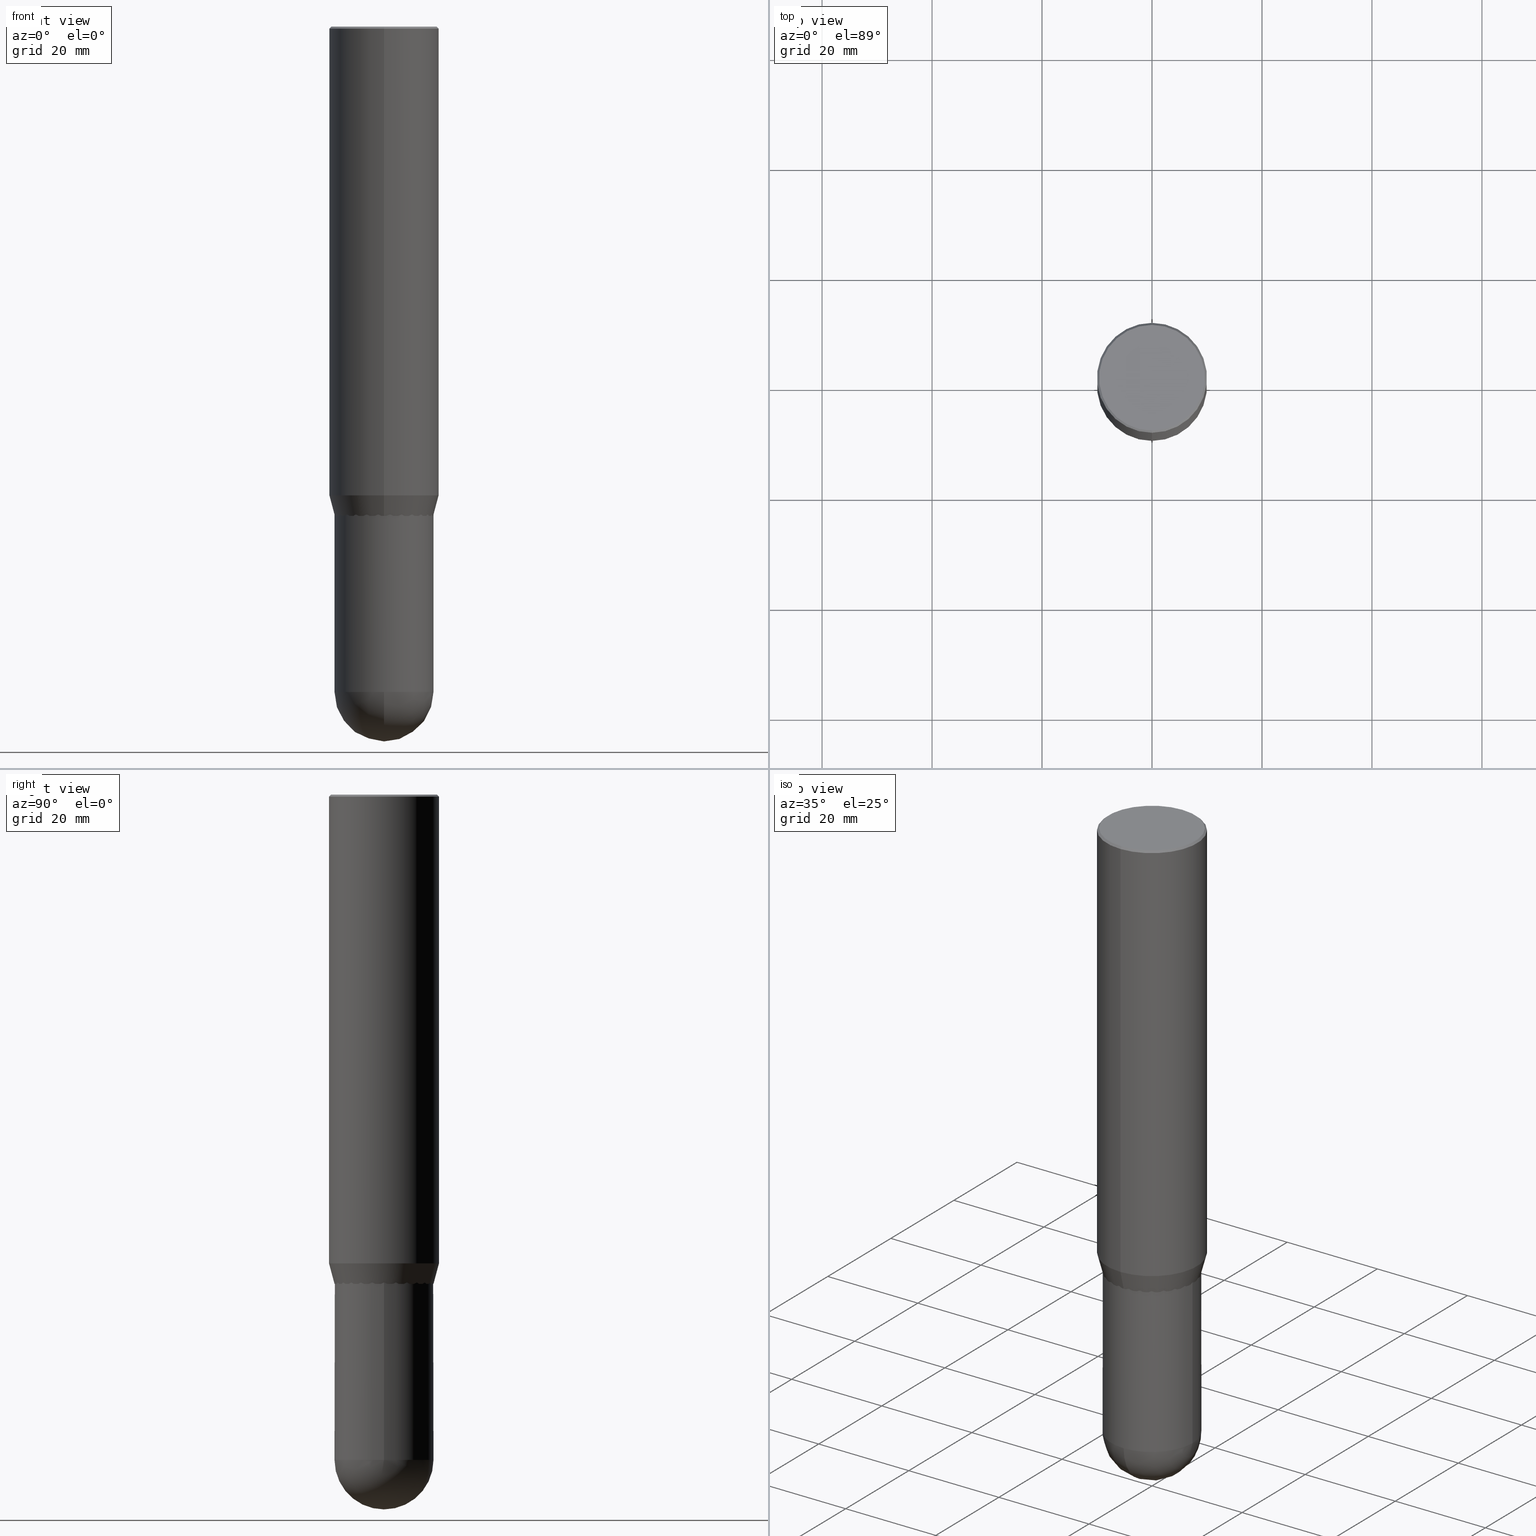
[diagram: canonical four-view strip — front | top / right | iso, engineering-drawing reading convention]
A machine part, canonical four-view strip (front | top / right | iso — engineering-drawing reading convention). The complete STEP part file that produces these views, byte-faithful:
ISO-10303-21;
HEADER;
FILE_DESCRIPTION (( 'STEP AP203' ),
    '1' );
FILE_NAME ('49650.STEP',
    '2024-03-08T13:40:11',
    ( '' ),
    ( '' ),
    'SwSTEP 2.0',
    'SolidWorks 2023',
    '' );
FILE_SCHEMA (( 'CONFIG_CONTROL_DESIGN' ));
ENDSEC;

DATA;
#1 = LOCAL_TIME ( 8, 40, 11.00000000000000000, #357 ) ;
#2 = DIRECTION ( 'NONE',  ( -2.445468806185136597E-29, 3.491481338843145583E-15, 1.000000000000000000 ) ) ;
#3 = CARTESIAN_POINT ( 'NONE',  ( -2.474412824838044286E-15, -0.3543500000000124883, -3.503099999999998992 ) ) ;
#4 = EDGE_CURVE ( 'NONE', #173, #454, #297, .T. ) ;
#5 = CIRCLE ( 'NONE', #271, 0.3937000000000000499 ) ;
#6 = CARTESIAN_POINT ( 'NONE',  ( 1.164960202546444527E-28, -1.663254422791403592E-14, -4.763749999999999929 ) ) ;
#7 = ADVANCED_BREP_SHAPE_REPRESENTATION ( '49650', ( #111, #443, #293 ), #337 ) ;
#8 = CARTESIAN_POINT ( 'NONE',  ( -0.3543500000000000538, 2.517808184165915391E-15, -1.743024649231826346E-29 ) ) ;
#9 = LOCAL_TIME ( 8, 40, 11.00000000000000000, #41 ) ;
#10 = DIRECTION ( 'NONE',  ( -2.446619523069192094E-29, 3.489833446770440452E-15, 1.000000000000000000 ) ) ;
#11 = AXIS2_PLACEMENT_3D ( 'NONE', #84, #10, #56 ) ;
#12 = VERTEX_POINT ( 'NONE', #26 ) ;
#13 = DIRECTION ( 'NONE',  ( -2.446619523069191814E-29, 3.489833446770440452E-15, 1.000000000000000000 ) ) ;
#14 = ADVANCED_FACE ( 'NONE', ( #294 ), #472, .T. ) ;
#15 = ORIENTED_EDGE ( 'NONE', *, *, #120, .F. ) ;
#16 = CARTESIAN_POINT ( 'NONE',  ( 8.570752851263687408E-29, -1.222523554738153069E-14, -3.503100000000000325 ) ) ;
#17 =( CONVERSION_BASED_UNIT ( 'INCH', #68 ) LENGTH_UNIT ( ) NAMED_UNIT ( #448 ) );
#18 = CYLINDRICAL_SURFACE ( 'NONE', #230, 0.3543500000000002759 ) ;
#19 = CC_DESIGN_PERSON_AND_ORGANIZATION_ASSIGNMENT ( #512, #39, ( #237 ) ) ;
#20 = VERTEX_POINT ( 'NONE', #460 ) ;
#21 = DIRECTION ( 'NONE',  ( 2.446619523069192094E-29, -3.489833446770440452E-15, -1.000000000000000000 ) ) ;
#22 = APPROVAL_PERSON_ORGANIZATION ( #351, #278, #150 ) ;
#23 = ORIENTED_EDGE ( 'NONE', *, *, #220, .F. ) ;
#24 = ADVANCED_FACE ( 'NONE', ( #412 ), #332, .F. ) ;
#25 = AXIS2_PLACEMENT_3D ( 'NONE', #449, #506, #338 ) ;
#26 = CARTESIAN_POINT ( 'NONE',  ( -0.3543500000000000538, -1.164041050594345640E-14, -4.763749999999999929 ) ) ;
#27 = CARTESIAN_POINT ( 'NONE',  ( 2.797406750687513998E-15, 0.3937000000000000499, -1.373947427993522467E-15 ) ) ;
#28 = PERSON_AND_ORGANIZATION ( #361, #115 ) ;
#29 = CARTESIAN_POINT ( 'NONE',  ( -2.700978061722651252E-15, -0.3937000000000001054, -0.01499999999999866371 ) ) ;
#30 = EDGE_LOOP ( 'NONE', ( #242, #299, #71, #395 ) ) ;
#31 =( LENGTH_UNIT ( ) NAMED_UNIT ( * ) SI_UNIT ( $, .METRE. ) );
#32 = PRODUCT_RELATED_PRODUCT_CATEGORY ( 'detail', '', ( #511 ) ) ;
#33 = CIRCLE ( 'NONE', #318, 0.3543500000000002759 ) ;
#34 = PERSON_AND_ORGANIZATION ( #361, #115 ) ;
#35 = CARTESIAN_POINT ( 'NONE',  ( 1.165296710481236520E-28, -1.662772524275939144E-14, -4.763749999999999929 ) ) ;
#36 = DIRECTION ( 'NONE',  ( -2.446619523069192094E-29, 3.489833446770440452E-15, 1.000000000000000000 ) ) ;
#37 = VERTEX_POINT ( 'NONE', #422 ) ;
#38 = APPROVAL_STATUS ( 'not_yet_approved' ) ;
#39 = PERSON_AND_ORGANIZATION_ROLE ( 'design_supplier' ) ;
#40 = CONICAL_SURFACE ( 'NONE', #381, 0.3937000000000000499, 0.7853981633974452814 ) ;
#41 = COORDINATED_UNIVERSAL_TIME_OFFSET ( 5, 0, .BEHIND. ) ;
#42 = EDGE_CURVE ( 'NONE', #20, #37, #311, .T. ) ;
#43 = LINE ( 'NONE', #3, #73 ) ;
#44 = ORIENTED_EDGE ( 'NONE', *, *, #231, .F. ) ;
#45 = EDGE_CURVE ( 'NONE', #454, #69, #415, .T. ) ;
#46 = ORIENTED_EDGE ( 'NONE', *, *, #175, .T. ) ;
#47 = AXIS2_PLACEMENT_3D ( 'NONE', #462, #103, #66 ) ;
#48 = DIRECTION ( 'NONE',  ( -2.446619523069192094E-29, 3.489833446770440452E-15, 1.000000000000000000 ) ) ;
#49 = AXIS2_PLACEMENT_3D ( 'NONE', #486, #444, #243 ) ;
#50 = ADVANCED_FACE ( 'NONE', ( #262 ), #181, .T. ) ;
#51 = DIRECTION ( 'NONE',  ( -2.446619523069192094E-29, 3.489833446770440452E-15, 1.000000000000000000 ) ) ;
#52 = CYLINDRICAL_SURFACE ( 'NONE', #126, 0.3543500000000000538 ) ;
#53 = CARTESIAN_POINT ( 'NONE',  ( 8.211451607026808771E-29, -1.171273187127617517E-14, -3.356243800722170434 ) ) ;
#54 = AXIS2_PLACEMENT_3D ( 'NONE', #457, #100, #253 ) ;
#55 = ORIENTED_EDGE ( 'NONE', *, *, #167, .F. ) ;
#56 = DIRECTION ( 'NONE',  ( -6.982962677686265133E-15, -1.000000000000000000, 3.491137977679279424E-15 ) ) ;
#57 = ORIENTED_EDGE ( 'NONE', *, *, #377, .T. ) ;
#58 = CARTESIAN_POINT ( 'NONE',  ( -2.517808184165798640E-15, -0.3543500000000166517, -4.763749999999999041 ) ) ;
#59 = EDGE_CURVE ( 'NONE', #265, #473, #503, .T. ) ;
#60 = ORIENTED_EDGE ( 'NONE', *, *, #101, .F. ) ;
#61 = DIRECTION ( 'NONE',  ( 1.000000000000000000, -6.982962677686266711E-15, 4.876176775795936353E-29 ) ) ;
#62 = SPHERICAL_SURFACE ( 'NONE', #213, 0.3543499999999999983 ) ;
#63 = AXIS2_PLACEMENT_3D ( 'NONE', #177, #215, #386 ) ;
#64 = ORIENTED_EDGE ( 'NONE', *, *, #387, .T. ) ;
#65 = DATE_TIME_ROLE ( 'creation_date' ) ;
#66 = DIRECTION ( 'NONE',  ( -6.982962677686266711E-15, -1.000000000000000000, 3.489833446770440452E-15 ) ) ;
#67 = ORIENTED_EDGE ( 'NONE', *, *, #220, .T. ) ;
#68 = LENGTH_MEASURE_WITH_UNIT ( LENGTH_MEASURE( 0.02539999999999999897 ), #31 );
#69 = VERTEX_POINT ( 'NONE', #464 ) ;
#70 = CARTESIAN_POINT ( 'NONE',  ( -2.749192406205000781E-15, -0.3937000000000117628, -3.356243800722169546 ) ) ;
#71 = ORIENTED_EDGE ( 'NONE', *, *, #504, .F. ) ;
#72 = CIRCLE ( 'NONE', #196, 0.3937000000000000499 ) ;
#73 = VECTOR ( 'NONE', #82, 39.37007874015748854 ) ;
#74 = ORIENTED_EDGE ( 'NONE', *, *, #510, .F. ) ;
#75 = APPROVAL_DATE_TIME ( #266, #278 ) ;
#76 = APPROVAL ( #38, 'UNSPECIFIED' ) ;
#77 = EDGE_CURVE ( 'NONE', #37, #12, #451, .T. ) ;
#78 = DATE_AND_TIME ( #471, #9 ) ;
#79 = CARTESIAN_POINT ( 'NONE',  ( 2.749192406205083217E-15, 0.3936999999999999389, -0.01500000000000141324 ) ) ;
#80 = CC_DESIGN_SECURITY_CLASSIFICATION ( #85, ( #237 ) ) ;
#81 = VECTOR ( 'NONE', #344, 39.37007874015748143 ) ;
#82 = DIRECTION ( 'NONE',  ( -1.807323732225381021E-15, -0.2588190451025254579, 0.9659258262890669799 ) ) ;
#83 = ORIENTED_EDGE ( 'NONE', *, *, #45, .T. ) ;
#84 = CARTESIAN_POINT ( 'NONE',  ( 3.669929284603797792E-31, -5.234750170155674212E-17, -0.01500000000000003934 ) ) ;
#85 = SECURITY_CLASSIFICATION ( '', '', #224 ) ;
#86 = DIRECTION ( 'NONE',  ( 2.438088387897960049E-29, -3.491481338843145188E-15, -1.000000000000000000 ) ) ;
#87 = AXIS2_PLACEMENT_3D ( 'NONE', #371, #419, #139 ) ;
#88 = DIRECTION ( 'NONE',  ( -6.982962677686266711E-15, -1.000000000000000000, 3.489833446770440452E-15 ) ) ;
#89 = ORIENTED_EDGE ( 'NONE', *, *, #191, .F. ) ;
#90 = CARTESIAN_POINT ( 'NONE',  ( -0.3543500000000000538, -1.164041050594345483E-14, -3.346400000000000041 ) ) ;
#91 = VERTEX_POINT ( 'NONE', #105 ) ;
#92 = DIRECTION ( 'NONE',  ( -6.982962677686265922E-15, -1.000000000000000000, 3.083784951222532539E-15 ) ) ;
#93 = CIRCLE ( 'NONE', #452, 0.3543500000000000538 ) ;
#94 = DIRECTION ( 'NONE',  ( -2.446619523069192094E-29, 3.489833446770440452E-15, 1.000000000000000000 ) ) ;
#95 = AXIS2_PLACEMENT_3D ( 'NONE', #200, #48, #88 ) ;
#96 = DESIGN_CONTEXT ( 'detailed design', #484, 'design' ) ;
#97 = DIRECTION ( 'NONE',  ( -2.446619523069192094E-29, 3.489833446770440452E-15, 1.000000000000000000 ) ) ;
#98 = ADVANCED_FACE ( 'NONE', ( #300 ), #306, .T. ) ;
#99 = DIRECTION ( 'NONE',  ( -6.982962677686265922E-15, -1.000000000000000000, 3.489833446770440452E-15 ) ) ;
#100 = DIRECTION ( 'NONE',  ( -2.446619523069192094E-29, 3.489833446770440452E-15, 1.000000000000000000 ) ) ;
#101 = EDGE_CURVE ( 'NONE', #20, #358, #427, .T. ) ;
#102 = DIRECTION ( 'NONE',  ( -2.446619523069192094E-29, 3.489833446770440452E-15, 1.000000000000000000 ) ) ;
#103 = DIRECTION ( 'NONE',  ( -2.446619523069192094E-29, 3.489833446770440452E-15, 1.000000000000000000 ) ) ;
#104 = CIRCLE ( 'NONE', #397, 0.3538500000000001089 ) ;
#105 = CARTESIAN_POINT ( 'NONE',  ( -2.749192406205082428E-15, -0.3937000000000001054, -0.01499999999999866371 ) ) ;
#106 =( NAMED_UNIT ( * ) SI_UNIT ( $, .STERADIAN. ) SOLID_ANGLE_UNIT ( ) );
#107 = ORIENTED_EDGE ( 'NONE', *, *, #208, .T. ) ;
#108 = CARTESIAN_POINT ( 'NONE',  ( 0.3543500000000000538, -1.415830597714283281E-14, -3.346400000000000041 ) ) ;
#109 = PLANE ( 'NONE',  #270 ) ;
#110 = ORIENTED_EDGE ( 'NONE', *, *, #208, .F. ) ;
#111 = MANIFOLD_SOLID_BREP ( 'Body-Move/Copy2[1]', #353 ) ;
#112 = CC_DESIGN_DATE_AND_TIME_ASSIGNMENT ( #420, #65, ( #232 ) ) ;
#113 = CARTESIAN_POINT ( 'NONE',  ( 8.187367571998744394E-29, -1.167837864627260117E-14, -3.346400000000000041 ) ) ;
#114 = ORIENTED_EDGE ( 'NONE', *, *, #120, .T. ) ;
#115 = ORGANIZATION ( 'UNSPECIFIED', 'UNSPECIFIED', '' ) ;
#116 = DATE_TIME_ROLE ( 'classification_date' ) ;
#117 = ORIENTED_EDGE ( 'NONE', *, *, #425, .F. ) ;
#118 = CARTESIAN_POINT ( 'NONE',  ( 0.3543500000000000538, -1.663263151494750088E-14, -4.763749999999999929 ) ) ;
#119 = LINE ( 'NONE', #394, #497 ) ;
#120 = EDGE_CURVE ( 'NONE', #326, #473, #136, .T. ) ;
#121 = CARTESIAN_POINT ( 'NONE',  ( 0.000000000000000000, 0.000000000000000000, 0.000000000000000000 ) ) ;
#122 = AXIS2_PLACEMENT_3D ( 'NONE', #289, #206, #499 ) ;
#123 = DIRECTION ( 'NONE',  ( -2.445468806185136597E-29, 3.491481338843145583E-15, 1.000000000000000000 ) ) ;
#124 = EDGE_CURVE ( 'NONE', #385, #326, #509, .T. ) ;
#125 = CARTESIAN_POINT ( 'NONE',  ( 2.657607467426799497E-15, 0.3543499999999880634, -3.503100000000001213 ) ) ;
#126 = AXIS2_PLACEMENT_3D ( 'NONE', #372, #169, #130 ) ;
#127 = CARTESIAN_POINT ( 'NONE',  ( 3.669929284603797792E-31, -5.234750170155674212E-17, -0.01500000000000003934 ) ) ;
#128 = EDGE_LOOP ( 'NONE', ( #180, #291, #329, #114 ) ) ;
#129 = VERTEX_POINT ( 'NONE', #118 ) ;
#130 = DIRECTION ( 'NONE',  ( 1.000000000000000000, -6.982962677686266711E-15, 4.876176775795936353E-29 ) ) ;
#131 = CARTESIAN_POINT ( 'NONE',  ( 1.164960202546444527E-28, -1.663254422791403592E-14, -4.763749999999999929 ) ) ;
#132 = DIRECTION ( 'NONE',  ( -2.445468806185136597E-29, 3.491481338843145583E-15, 1.000000000000000000 ) ) ;
#133 = ADVANCED_FACE ( 'NONE', ( #275 ), #40, .T. ) ;
#134 = CARTESIAN_POINT ( 'NONE',  ( 1.165296710481236520E-28, -1.662772524275939144E-14, -4.763749999999999929 ) ) ;
#135 = CARTESIAN_POINT ( 'NONE',  ( 0.000000000000000000, 0.000000000000000000, 0.000000000000000000 ) ) ;
#136 = CIRCLE ( 'NONE', #54, 0.3543500000000002759 ) ;
#137 = CONICAL_SURFACE ( 'NONE', #479, 0.3543500000000002759, 0.2617993877991577900 ) ;
#138 = FACE_OUTER_BOUND ( 'NONE', #414, .T. ) ;
#139 = DIRECTION ( 'NONE',  ( -7.105427357601001070E-15, -1.000000000000000000, 0.000000000000000000 ) ) ;
#140 = CALENDAR_DATE ( 2024, 8, 3 ) ;
#141 = ORIENTED_EDGE ( 'NONE', *, *, #45, .F. ) ;
#142 = DIRECTION ( 'NONE',  ( 1.000000000000000000, -6.982962677686270655E-15, 0.000000000000000000 ) ) ;
#143 = PERSON_AND_ORGANIZATION ( #361, #115 ) ;
#144 = ORIENTED_EDGE ( 'NONE', *, *, #77, .T. ) ;
#145 = COORDINATED_UNIVERSAL_TIME_OFFSET ( 5, 0, .BEHIND. ) ;
#146 = FACE_OUTER_BOUND ( 'NONE', #217, .T. ) ;
#147 = LOCAL_TIME ( 8, 40, 11.00000000000000000, #254 ) ;
#148 = ADVANCED_FACE ( 'NONE', ( #233 ), #18, .F. ) ;
#149 = CIRCLE ( 'NONE', #495, 0.3543500000000000538 ) ;
#150 = APPROVAL_ROLE ( '' ) ;
#151 = FACE_OUTER_BOUND ( 'NONE', #417, .T. ) ;
#152 = DIRECTION ( 'NONE',  ( -4.937700262164547253E-15, -0.7071067811865450192, 0.7071067811865499042 ) ) ;
#153 = ORIENTED_EDGE ( 'NONE', *, *, #124, .F. ) ;
#154 = VECTOR ( 'NONE', #309, 39.37007874015748143 ) ;
#155 = VECTOR ( 'NONE', #409, 39.37007874015748854 ) ;
#156 = DIRECTION ( 'NONE',  ( 1.000000000000000000, -6.982962677686270655E-15, 0.000000000000000000 ) ) ;
#157 = ORIENTED_EDGE ( 'NONE', *, *, #267, .F. ) ;
#158 = PERSON_AND_ORGANIZATION_ROLE ( 'creator' ) ;
#159 = CARTESIAN_POINT ( 'NONE',  ( 2.797406750687596039E-15, 0.3936999999999882816, -3.356243800722171766 ) ) ;
#160 = EDGE_CURVE ( 'NONE', #69, #91, #72, .T. ) ;
#161 = AXIS2_PLACEMENT_3D ( 'NONE', #432, #2, #156 ) ;
#162 = ORIENTED_EDGE ( 'NONE', *, *, #59, .T. ) ;
#163 = UNCERTAINTY_MEASURE_WITH_UNIT (LENGTH_MEASURE( 1.000000000000000082E-05 ), #17, 'distance_accuracy_value', 'NONE');
#164 = DIRECTION ( 'NONE',  ( -2.446619523069192094E-29, 3.489833446770440452E-15, 1.000000000000000000 ) ) ;
#165 = CARTESIAN_POINT ( 'NONE',  ( 0.3543500000000000538, -2.474412824838129089E-15, 1.727873240503290310E-29 ) ) ;
#166 = CIRCLE ( 'NONE', #161, 0.3543500000000000538 ) ;
#167 = EDGE_CURVE ( 'NONE', #12, #358, #149, .T. ) ;
#168 = VECTOR ( 'NONE', #164, 39.37007874015748143 ) ;
#169 = DIRECTION ( 'NONE',  ( -2.445468806185136597E-29, 3.491481338843145583E-15, 1.000000000000000000 ) ) ;
#170 = ORIENTED_EDGE ( 'NONE', *, *, #504, .T. ) ;
#171 = DIRECTION ( 'NONE',  ( -6.982962677686265922E-15, -1.000000000000000000, 3.489833446770440452E-15 ) ) ;
#172 = ORIENTED_EDGE ( 'NONE', *, *, #445, .T. ) ;
#173 = VERTEX_POINT ( 'NONE', #125 ) ;
#174 = DIRECTION ( 'NONE',  ( -2.445468806185136597E-29, 3.491481338843145583E-15, 1.000000000000000000 ) ) ;
#175 = EDGE_CURVE ( 'NONE', #129, #37, #480, .T. ) ;
#176 = ORIENTED_EDGE ( 'NONE', *, *, #175, .F. ) ;
#177 = CARTESIAN_POINT ( 'NONE',  ( 1.165296710481236520E-28, -1.662772524275939144E-14, -4.763749999999999929 ) ) ;
#178 = APPROVAL_PERSON_ORGANIZATION ( #28, #292, #500 ) ;
#179 = AXIS2_PLACEMENT_3D ( 'NONE', #16, #97, #92 ) ;
#180 = ORIENTED_EDGE ( 'NONE', *, *, #433, .F. ) ;
#181 = CYLINDRICAL_SURFACE ( 'NONE', #239, 0.3543500000000000538 ) ;
#182 = FACE_OUTER_BOUND ( 'NONE', #324, .T. ) ;
#183 = ORIENTED_EDGE ( 'NONE', *, *, #510, .T. ) ;
#184 = DIRECTION ( 'NONE',  ( -4.851104656540949287E-15, -0.7071067811865477948, -0.7071067811865472397 ) ) ;
#185 = ORIENTED_EDGE ( 'NONE', *, *, #101, .T. ) ;
#186 = CARTESIAN_POINT ( 'NONE',  ( 0.000000000000000000, 0.000000000000000000, 0.000000000000000000 ) ) ;
#187 = DIRECTION ( 'NONE',  ( -1.000000000000000000, 6.982962677686265133E-15, -4.883557194083112340E-29 ) ) ;
#188 = CC_DESIGN_PERSON_AND_ORGANIZATION_ASSIGNMENT ( #34, #158, ( #237 ) ) ;
#189 = AXIS2_PLACEMENT_3D ( 'NONE', #455, #465, #380 ) ;
#190 = DIRECTION ( 'NONE',  ( 2.446619523069191814E-29, -3.489833446770440452E-15, -1.000000000000000000 ) ) ;
#191 = EDGE_CURVE ( 'NONE', #358, #129, #204, .T. ) ;
#192 = ORIENTED_EDGE ( 'NONE', *, *, #425, .T. ) ;
#193 = CIRCLE ( 'NONE', #47, 0.3787000000000000921 ) ;
#194 = CARTESIAN_POINT ( 'NONE',  ( -2.749192406205082822E-15, -0.3937000000000000499, 1.373947427993522467E-15 ) ) ;
#195 = CC_DESIGN_PERSON_AND_ORGANIZATION_ASSIGNMENT ( #143, #301, ( #232 ) ) ;
#196 = AXIS2_PLACEMENT_3D ( 'NONE', #127, #94, #286 ) ;
#197 = VECTOR ( 'NONE', #198, 39.37007874015748143 ) ;
#198 = DIRECTION ( 'NONE',  ( -2.445468806185136877E-29, 3.491481338843145188E-15, 1.000000000000000000 ) ) ;
#199 = ORIENTED_EDGE ( 'NONE', *, *, #391, .T. ) ;
#200 = CARTESIAN_POINT ( 'NONE',  ( 9.594726036736904998E-46, -1.368582058627539699E-31, -3.921625715101252830E-17 ) ) ;
#201 = EDGE_CURVE ( 'NONE', #209, #326, #334, .T. ) ;
#202 = FACE_OUTER_BOUND ( 'NONE', #308, .T. ) ;
#203 = CIRCLE ( 'NONE', #463, 0.3543500000000002759 ) ;
#204 = CIRCLE ( 'NONE', #325, 0.3543500000000000538 ) ;
#205 = FACE_OUTER_BOUND ( 'NONE', #250, .T. ) ;
#206 = DIRECTION ( 'NONE',  ( -2.446619523069192094E-29, 3.489833446770440452E-15, 1.000000000000000000 ) ) ;
#207 = DIRECTION ( 'NONE',  ( -2.445468806185136877E-29, 3.491481338843145188E-15, 1.000000000000000000 ) ) ;
#208 = EDGE_CURVE ( 'NONE', #265, #385, #104, .T. ) ;
#209 = VERTEX_POINT ( 'NONE', #483 ) ;
#210 = DIRECTION ( 'NONE',  ( -6.982962677686265922E-15, -1.000000000000000000, 3.083784951222532539E-15 ) ) ;
#211 = ORIENTED_EDGE ( 'NONE', *, *, #59, .F. ) ;
#212 = DIRECTION ( 'NONE',  ( -2.445468806185136597E-29, 3.491481338843145583E-15, 1.000000000000000000 ) ) ;
#213 = AXIS2_PLACEMENT_3D ( 'NONE', #35, #187, #341 ) ;
#214 = ORIENTED_EDGE ( 'NONE', *, *, #410, .F. ) ;
#215 = DIRECTION ( 'NONE',  ( -1.000000000000000000, 6.982962677686265133E-15, -4.883557194083112340E-29 ) ) ;
#216 = CARTESIAN_POINT ( 'NONE',  ( -2.649524326739365050E-15, -0.3787000000000000921, 1.282383669140953621E-15 ) ) ;
#217 = EDGE_LOOP ( 'NONE', ( #490, #274, #172, #218 ) ) ;
#218 = ORIENTED_EDGE ( 'NONE', *, *, #160, .T. ) ;
#219 = DIRECTION ( 'NONE',  ( 1.000000000000000000, 0.000000000000000000, 0.000000000000000000 ) ) ;
#220 = EDGE_CURVE ( 'NONE', #91, #69, #436, .T. ) ;
#221 = AXIS2_PLACEMENT_3D ( 'NONE', #113, #437, #312 ) ;
#222 = DIRECTION ( 'NONE',  ( -2.446619523069192094E-29, 3.489833446770440452E-15, 1.000000000000000000 ) ) ;
#223 = ADVANCED_FACE ( 'NONE', ( #138 ), #450, .T. ) ;
#224 = SECURITY_CLASSIFICATION_LEVEL ( 'unclassified' ) ;
#225 = CARTESIAN_POINT ( 'NONE',  ( 8.570752851263687408E-29, -1.222523554738153069E-14, -3.503100000000000325 ) ) ;
#226 = CALENDAR_DATE ( 2024, 8, 3 ) ;
#227 = DIRECTION ( 'NONE',  ( 4.937700262164532265E-15, 0.7071067811865429098, -0.7071067811865521247 ) ) ;
#228 = VECTOR ( 'NONE', #227, 39.37007874015748143 ) ;
#229 = PRODUCT_DEFINITION_SHAPE ( 'NONE', 'NONE',  #232 ) ;
#230 = AXIS2_PLACEMENT_3D ( 'NONE', #489, #51, #171 ) ;
#231 = EDGE_CURVE ( 'NONE', #454, #321, #5, .T. ) ;
#232 = PRODUCT_DEFINITION ( 'UNKNOWN', '', #237, #96 ) ;
#233 = FACE_OUTER_BOUND ( 'NONE', #393, .T. ) ;
#234 = ORIENTED_EDGE ( 'NONE', *, *, #430, .F. ) ;
#235 = CARTESIAN_POINT ( 'NONE',  ( 1.164960202546444527E-28, -1.663254422791403592E-14, -4.763749999999999929 ) ) ;
#236 = ADVANCED_FACE ( 'NONE', ( #440 ), #322, .F. ) ;
#237 = PRODUCT_DEFINITION_FORMATION_WITH_SPECIFIED_SOURCE ( 'ANY', '', #511, .NOT_KNOWN. ) ;
#238 = ORIENTED_EDGE ( 'NONE', *, *, #191, .T. ) ;
#239 = AXIS2_PLACEMENT_3D ( 'NONE', #186, #350, #61 ) ;
#240 = DIRECTION ( 'NONE',  ( -6.982962677686265922E-15, -1.000000000000000000, 3.088142426072361029E-15 ) ) ;
#241 = DIRECTION ( 'NONE',  ( 2.446619523069192094E-29, -3.489833446770440452E-15, -1.000000000000000000 ) ) ;
#242 = ORIENTED_EDGE ( 'NONE', *, *, #406, .T. ) ;
#243 = DIRECTION ( 'NONE',  ( -6.982962677686265922E-15, -1.000000000000000000, 3.088142426072361029E-15 ) ) ;
#244 = ORIENTED_EDGE ( 'NONE', *, *, #261, .F. ) ;
#245 = PLANE ( 'NONE',  #340 ) ;
#246 = ORIENTED_EDGE ( 'NONE', *, *, #4, .F. ) ;
#247 = DIRECTION ( 'NONE',  ( 1.000000000000000000, -6.982962677686265922E-15, 4.883557194083112340E-29 ) ) ;
#248 = AXIS2_PLACEMENT_3D ( 'NONE', #249, #446, #491 ) ;
#249 = CARTESIAN_POINT ( 'NONE',  ( 0.000000000000000000, 0.000000000000000000, 0.000000000000000000 ) ) ;
#250 = EDGE_LOOP ( 'NONE', ( #117, #110 ) ) ;
#251 = DIRECTION ( 'NONE',  ( -6.982962677686265922E-15, -1.000000000000000000, 3.083784951222532539E-15 ) ) ;
#252 = ORIENTED_EDGE ( 'NONE', *, *, #124, .T. ) ;
#253 = DIRECTION ( 'NONE',  ( -6.982962677686265922E-15, -1.000000000000000000, 3.083784951222532539E-15 ) ) ;
#254 = COORDINATED_UNIVERSAL_TIME_OFFSET ( 5, 0, .BEHIND. ) ;
#255 = EDGE_CURVE ( 'NONE', #492, #373, #319, .T. ) ;
#256 = EDGE_LOOP ( 'NONE', ( #60, #376, #176, #89 ) ) ;
#257 = ORIENTED_EDGE ( 'NONE', *, *, #160, .F. ) ;
#258 = CALENDAR_DATE ( 2024, 8, 3 ) ;
#259 = CIRCLE ( 'NONE', #189, 0.3937000000000000499 ) ;
#260 = CARTESIAN_POINT ( 'NONE',  ( -2.474412824838049019E-15, -0.3543500000000120997, -3.345899999999998986 ) ) ;
#261 = EDGE_CURVE ( 'NONE', #12, #296, #365, .T. ) ;
#262 = FACE_OUTER_BOUND ( 'NONE', #283, .T. ) ;
#263 = MECHANICAL_CONTEXT ( 'NONE', #346, 'mechanical' ) ;
#264 = SPHERICAL_SURFACE ( 'NONE', #63, 0.3543499999999999983 ) ;
#265 = VERTEX_POINT ( 'NONE', #411 ) ;
#266 = DATE_AND_TIME ( #398, #310 ) ;
#267 = EDGE_CURVE ( 'NONE', #129, #496, #367, .T. ) ;
#268 = CARTESIAN_POINT ( 'NONE',  ( 8.186144262237209048E-29, -1.167663372954921717E-14, -3.345899999999999874 ) ) ;
#269 = AXIS2_PLACEMENT_3D ( 'NONE', #363, #174, #285 ) ;
#270 = AXIS2_PLACEMENT_3D ( 'NONE', #505, #190, #390 ) ;
#271 = AXIS2_PLACEMENT_3D ( 'NONE', #53, #287, #442 ) ;
#272 = SHAPE_DEFINITION_REPRESENTATION ( #229, #7 ) ;
#273 = PERSON_AND_ORGANIZATION ( #361, #115 ) ;
#274 = ORIENTED_EDGE ( 'NONE', *, *, #255, .F. ) ;
#275 = FACE_OUTER_BOUND ( 'NONE', #288, .T. ) ;
#276 = PERSON_AND_ORGANIZATION ( #361, #115 ) ;
#277 = CC_DESIGN_APPROVAL ( #278, ( #237 ) ) ;
#278 = APPROVAL ( #507, 'UNSPECIFIED' ) ;
#279 = AXIS2_PLACEMENT_3D ( 'NONE', #401, #86, #327 ) ;
#280 = PERSON_AND_ORGANIZATION_ROLE ( 'classification_officer' ) ;
#281 = DIRECTION ( 'NONE',  ( 6.982962677686265133E-15, 1.000000000000000000, -3.491137977679279424E-15 ) ) ;
#282 = ADVANCED_FACE ( 'NONE', ( #202 ), #498, .T. ) ;
#283 = EDGE_LOOP ( 'NONE', ( #244, #468, #238, #466, #214 ) ) ;
#284 = ADVANCED_FACE ( 'NONE', ( #405 ), #52, .T. ) ;
#285 = DIRECTION ( 'NONE',  ( 1.000000000000000000, -6.982962677686270655E-15, 0.000000000000000000 ) ) ;
#286 = DIRECTION ( 'NONE',  ( -6.982962677686265133E-15, -1.000000000000000000, 3.491137977679279424E-15 ) ) ;
#287 = DIRECTION ( 'NONE',  ( -2.446619523069192094E-29, 3.489833446770440452E-15, 1.000000000000000000 ) ) ;
#288 = EDGE_LOOP ( 'NONE', ( #424, #57, #67, #456 ) ) ;
#289 = CARTESIAN_POINT ( 'NONE',  ( 8.187367571998744394E-29, -1.167837864627260117E-14, -3.346400000000000041 ) ) ;
#290 = CARTESIAN_POINT ( 'NONE',  ( 8.187367571998744394E-29, -1.167837864627260117E-14, -3.346400000000000041 ) ) ;
#291 = ORIENTED_EDGE ( 'NONE', *, *, #406, .F. ) ;
#292 = APPROVAL ( #467, 'UNSPECIFIED' ) ;
#293 = AXIS2_PLACEMENT_3D ( 'NONE', #135, #413, #219 ) ;
#294 = FACE_OUTER_BOUND ( 'NONE', #30, .T. ) ;
#295 = CARTESIAN_POINT ( 'NONE',  ( 2.517808184165997433E-15, 0.3543499999999884520, -3.345900000000001207 ) ) ;
#296 = VERTEX_POINT ( 'NONE', #90 ) ;
#297 = LINE ( 'NONE', #347, #81 ) ;
#298 = CARTESIAN_POINT ( 'NONE',  ( 8.570752851263687408E-29, -1.222523554738153069E-14, -3.503100000000000325 ) ) ;
#299 = ORIENTED_EDGE ( 'NONE', *, *, #4, .T. ) ;
#300 = FACE_OUTER_BOUND ( 'NONE', #502, .T. ) ;
#301 = PERSON_AND_ORGANIZATION_ROLE ( 'creator' ) ;
#302 = EDGE_LOOP ( 'NONE', ( #141, #382, #64, #257 ) ) ;
#303 = CARTESIAN_POINT ( 'NONE',  ( 2.514255470487196929E-15, 0.3538499999999884515, -3.346400000000001373 ) ) ;
#304 = PERSON_AND_ORGANIZATION ( #361, #115 ) ;
#305 = CC_DESIGN_APPROVAL ( #76, ( #85 ) ) ;
#306 = CONICAL_SURFACE ( 'NONE', #122, 0.3538500000000001089, 0.7853981633974482790 ) ;
#307 = EDGE_LOOP ( 'NONE', ( #439, #364 ) ) ;
#308 = EDGE_LOOP ( 'NONE', ( #211, #107, #252, #234 ) ) ;
#309 = DIRECTION ( 'NONE',  ( -2.446619523069192094E-29, 3.489833446770440452E-15, 1.000000000000000000 ) ) ;
#310 = LOCAL_TIME ( 8, 40, 11.00000000000000000, #145 ) ;
#311 = CIRCLE ( 'NONE', #408, 0.3543499999999999983 ) ;
#312 = DIRECTION ( 'NONE',  ( -6.982962677686265922E-15, -1.000000000000000000, 3.088142426072361029E-15 ) ) ;
#313 = ORIENTED_EDGE ( 'NONE', *, *, #77, .F. ) ;
#314 = FACE_OUTER_BOUND ( 'NONE', #302, .T. ) ;
#315 = ADVANCED_FACE ( 'NONE', ( #205 ), #245, .F. ) ;
#316 = CARTESIAN_POINT ( 'NONE',  ( 3.669929284603797792E-31, -5.234750170155674212E-17, -0.01500000000000003934 ) ) ;
#317 = DIRECTION ( 'NONE',  ( -6.982962677686265922E-15, -1.000000000000000000, 3.083784951222532539E-15 ) ) ;
#318 = AXIS2_PLACEMENT_3D ( 'NONE', #225, #400, #317 ) ;
#319 = CIRCLE ( 'NONE', #95, 0.3787000000000000921 ) ;
#320 = CARTESIAN_POINT ( 'NONE',  ( -2.474412824838130272E-15, -0.3543500000000002759, 1.236622481863106554E-15 ) ) ;
#321 = VERTEX_POINT ( 'NONE', #70 ) ;
#322 = PLANE ( 'NONE',  #279 ) ;
#323 = CC_DESIGN_APPROVAL ( #292, ( #232 ) ) ;
#324 = EDGE_LOOP ( 'NONE', ( #447, #185, #55, #313 ) ) ;
#325 = AXIS2_PLACEMENT_3D ( 'NONE', #6, #370, #330 ) ;
#326 = VERTEX_POINT ( 'NONE', #260 ) ;
#327 = DIRECTION ( 'NONE',  ( -1.000000000000000000, 6.982962677686265922E-15, -4.876176775795935793E-29 ) ) ;
#328 = ADVANCED_FACE ( 'NONE', ( #388 ), #62, .T. ) ;
#329 = ORIENTED_EDGE ( 'NONE', *, *, #201, .T. ) ;
#330 = DIRECTION ( 'NONE',  ( 1.000000000000000000, -6.982962677686270655E-15, 0.000000000000000000 ) ) ;
#331 = ORIENTED_EDGE ( 'NONE', *, *, #433, .T. ) ;
#332 = CYLINDRICAL_SURFACE ( 'NONE', #25, 0.3543500000000002759 ) ;
#333 = DIRECTION ( 'NONE',  ( -2.446619523069192094E-29, 3.489833446770440452E-15, 1.000000000000000000 ) ) ;
#334 = LINE ( 'NONE', #320, #168 ) ;
#335 = EDGE_LOOP ( 'NONE', ( #426, #342 ) ) ;
#336 = ADVANCED_FACE ( 'NONE', ( #151 ), #137, .T. ) ;
#337 =( GEOMETRIC_REPRESENTATION_CONTEXT ( 3 ) GLOBAL_UNCERTAINTY_ASSIGNED_CONTEXT ( ( #163 ) ) GLOBAL_UNIT_ASSIGNED_CONTEXT ( ( #17, #458, #106 ) ) REPRESENTATION_CONTEXT ( 'NONE', 'WORKASPACE' ) );
#338 = DIRECTION ( 'NONE',  ( -6.982962677686265922E-15, -1.000000000000000000, 3.489833446770440452E-15 ) ) ;
#339 = PERSON_AND_ORGANIZATION_ROLE ( 'design_owner' ) ;
#340 = AXIS2_PLACEMENT_3D ( 'NONE', #407, #13, #99 ) ;
#341 = DIRECTION ( 'NONE',  ( 6.982962677686265133E-15, 1.000000000000000000, -3.083784951222534905E-15 ) ) ;
#342 = ORIENTED_EDGE ( 'NONE', *, *, #369, .T. ) ;
#343 = ADVANCED_FACE ( 'NONE', ( #459 ), #109, .F. ) ;
#344 = DIRECTION ( 'NONE',  ( 1.839019923739651986E-15, 0.2588190451025322303, 0.9659258262890650926 ) ) ;
#345 = APPROVAL_DATE_TIME ( #416, #292 ) ;
#346 = APPLICATION_CONTEXT ( 'configuration controlled 3d designs of mechanical parts and assemblies' ) ;
#347 = CARTESIAN_POINT ( 'NONE',  ( 2.517808184166002560E-15, 0.3543499999999880634, -3.503100000000001213 ) ) ;
#348 = APPLICATION_PROTOCOL_DEFINITION ( 'international standard', 'config_control_design', 1994, #484 ) ;
#349 = CARTESIAN_POINT ( 'NONE',  ( -2.470921343499204040E-15, -0.3538500000000117662, -3.346399999999999153 ) ) ;
#350 = DIRECTION ( 'NONE',  ( -2.445468806185136597E-29, 3.491481338843145583E-15, 1.000000000000000000 ) ) ;
#351 = PERSON_AND_ORGANIZATION ( #361, #115 ) ;
#352 = APPROVAL_PERSON_ORGANIZATION ( #273, #76, #356 ) ;
#353 = CLOSED_SHELL ( 'NONE', ( #284, #482, #236, #328, #50 ) ) ;
#354 = CC_DESIGN_DATE_AND_TIME_ASSIGNMENT ( #78, #116, ( #85 ) ) ;
#355 = ORIENTED_EDGE ( 'NONE', *, *, #201, .F. ) ;
#356 = APPROVAL_ROLE ( '' ) ;
#357 = COORDINATED_UNIVERSAL_TIME_OFFSET ( 5, 0, .BEHIND. ) ;
#358 = VERTEX_POINT ( 'NONE', #58 ) ;
#359 = VECTOR ( 'NONE', #184, 39.37007874015748143 ) ;
#360 = ADVANCED_FACE ( 'NONE', ( #146 ), #389, .T. ) ;
#361 = PERSON ( 'UNSPECIFIED', 'UNSPECIFIED', 'UNSPECIFIED', ('UNSPECIFIED'), ('UNSPECIFIED'), ('UNSPECIFIED') ) ;
#362 = DIRECTION ( 'NONE',  ( -2.446619523069192094E-29, 3.489833446770440452E-15, 1.000000000000000000 ) ) ;
#363 = CARTESIAN_POINT ( 'NONE',  ( 1.164960202546444527E-28, -1.663254422791403592E-14, -4.763749999999999929 ) ) ;
#364 = ORIENTED_EDGE ( 'NONE', *, *, #410, .T. ) ;
#365 = LINE ( 'NONE', #8, #197 ) ;
#366 = DIRECTION ( 'NONE',  ( -6.982962677686265133E-15, -1.000000000000000000, 3.489833446770440057E-15 ) ) ;
#367 = LINE ( 'NONE', #165, #392 ) ;
#368 = VECTOR ( 'NONE', #152, 39.37007874015748854 ) ;
#369 = EDGE_CURVE ( 'NONE', #373, #492, #193, .T. ) ;
#370 = DIRECTION ( 'NONE',  ( -2.445468806185136597E-29, 3.491481338843145583E-15, 1.000000000000000000 ) ) ;
#371 = CARTESIAN_POINT ( 'NONE',  ( 1.165296710481236520E-28, -1.662772524275939144E-14, -4.763749999999999929 ) ) ;
#372 = CARTESIAN_POINT ( 'NONE',  ( 0.000000000000000000, 0.000000000000000000, 0.000000000000000000 ) ) ;
#373 = VERTEX_POINT ( 'NONE', #216 ) ;
#374 = APPLICATION_PROTOCOL_DEFINITION ( 'international standard', 'config_control_design', 1994, #346 ) ;
#375 = CARTESIAN_POINT ( 'NONE',  ( 3.669929284603797792E-31, -5.234750170155674212E-17, -0.01500000000000003934 ) ) ;
#376 = ORIENTED_EDGE ( 'NONE', *, *, #42, .T. ) ;
#377 = EDGE_CURVE ( 'NONE', #373, #91, #384, .T. ) ;
#378 = CIRCLE ( 'NONE', #221, 0.3538500000000001089 ) ;
#379 = DIRECTION ( 'NONE',  ( 6.982962677686265922E-15, 1.000000000000000000, 0.000000000000000000 ) ) ;
#380 = DIRECTION ( 'NONE',  ( -6.982962677686265133E-15, -1.000000000000000000, 4.163344669033674845E-15 ) ) ;
#381 = AXIS2_PLACEMENT_3D ( 'NONE', #316, #241, #281 ) ;
#382 = ORIENTED_EDGE ( 'NONE', *, *, #231, .T. ) ;
#383 = CARTESIAN_POINT ( 'NONE',  ( 2.696820186122436926E-15, 0.3787000000000000921, -1.360816183442978678E-15 ) ) ;
#384 = LINE ( 'NONE', #29, #359 ) ;
#385 = VERTEX_POINT ( 'NONE', #349 ) ;
#386 = DIRECTION ( 'NONE',  ( 6.982962677686265133E-15, 1.000000000000000000, -3.083784951222534905E-15 ) ) ;
#387 = EDGE_CURVE ( 'NONE', #321, #91, #508, .T. ) ;
#388 = FACE_OUTER_BOUND ( 'NONE', #256, .T. ) ;
#389 = CONICAL_SURFACE ( 'NONE', #429, 0.3937000000000000499, 0.7853981633974452814 ) ;
#390 = DIRECTION ( 'NONE',  ( 6.982962677686265922E-15, 1.000000000000000000, -3.489833446770440452E-15 ) ) ;
#391 = EDGE_CURVE ( 'NONE', #209, #321, #43, .T. ) ;
#392 = VECTOR ( 'NONE', #207, 39.37007874015748143 ) ;
#393 = EDGE_LOOP ( 'NONE', ( #74, #331, #493, #355 ) ) ;
#394 = CARTESIAN_POINT ( 'NONE',  ( 2.517808184165916574E-15, 0.3543500000000002759, -1.236622481863106554E-15 ) ) ;
#395 = ORIENTED_EDGE ( 'NONE', *, *, #391, .F. ) ;
#396 = DIRECTION ( 'NONE',  ( 1.000000000000000000, -6.982962677686270655E-15, 0.000000000000000000 ) ) ;
#397 = AXIS2_PLACEMENT_3D ( 'NONE', #290, #494, #240 ) ;
#398 = CALENDAR_DATE ( 2024, 8, 3 ) ;
#399 = ORIENTED_EDGE ( 'NONE', *, *, #261, .T. ) ;
#400 = DIRECTION ( 'NONE',  ( -2.446619523069192094E-29, 3.489833446770440452E-15, 1.000000000000000000 ) ) ;
#401 = CARTESIAN_POINT ( 'NONE',  ( 2.474412824838210736E-15, 0.3543499999999883965, -3.346400000000001373 ) ) ;
#402 = EDGE_LOOP ( 'NONE', ( #144, #399, #488, #157, #46 ) ) ;
#403 = DIRECTION ( 'NONE',  ( 1.000000000000000000, -6.982962677686270655E-15, 0.000000000000000000 ) ) ;
#404 = EDGE_CURVE ( 'NONE', #496, #296, #166, .T. ) ;
#405 = FACE_OUTER_BOUND ( 'NONE', #402, .T. ) ;
#406 = EDGE_CURVE ( 'NONE', #209, #173, #33, .T. ) ;
#407 = CARTESIAN_POINT ( 'NONE',  ( 8.187367571998744394E-29, -1.167837864627260117E-14, -3.346400000000000041 ) ) ;
#408 = AXIS2_PLACEMENT_3D ( 'NONE', #134, #247, #379 ) ;
#409 = DIRECTION ( 'NONE',  ( 5.024295867788060812E-15, 0.7071067811865499042, 0.7071067811865450192 ) ) ;
#410 = EDGE_CURVE ( 'NONE', #296, #496, #93, .T. ) ;
#411 = CARTESIAN_POINT ( 'NONE',  ( 2.516031827326597772E-15, 0.3538499999999884515, -3.346400000000001373 ) ) ;
#412 = FACE_OUTER_BOUND ( 'NONE', #128, .T. ) ;
#413 = DIRECTION ( 'NONE',  ( 0.000000000000000000, 0.000000000000000000, 1.000000000000000000 ) ) ;
#414 = EDGE_LOOP ( 'NONE', ( #170, #83, #23, #476 ) ) ;
#415 = LINE ( 'NONE', #27, #431 ) ;
#416 = DATE_AND_TIME ( #140, #147 ) ;
#417 = EDGE_LOOP ( 'NONE', ( #246, #183, #199, #44 ) ) ;
#418 = AXIS2_PLACEMENT_3D ( 'NONE', #268, #222, #475 ) ;
#419 = DIRECTION ( 'NONE',  ( -1.000000000000000000, 7.105427357601001070E-15, -4.926315508542082329E-29 ) ) ;
#420 = DATE_AND_TIME ( #258, #470 ) ;
#421 = DIRECTION ( 'NONE',  ( -2.446619523069192094E-29, 3.489833446770440452E-15, 1.000000000000000000 ) ) ;
#422 = CARTESIAN_POINT ( 'NONE',  ( 2.474412824838244657E-15, 0.3543499999999834005, -4.763750000000001705 ) ) ;
#423 = CARTESIAN_POINT ( 'NONE',  ( 8.570752851263687408E-29, -1.222523554738153069E-14, -3.503100000000000325 ) ) ;
#424 = ORIENTED_EDGE ( 'NONE', *, *, #369, .F. ) ;
#425 = EDGE_CURVE ( 'NONE', #385, #265, #378, .T. ) ;
#426 = ORIENTED_EDGE ( 'NONE', *, *, #255, .T. ) ;
#427 = CIRCLE ( 'NONE', #87, 0.3543499999999999983 ) ;
#428 = APPROVAL_DATE_TIME ( #435, #76 ) ;
#429 = AXIS2_PLACEMENT_3D ( 'NONE', #375, #21, #501 ) ;
#430 = EDGE_CURVE ( 'NONE', #473, #326, #441, .T. ) ;
#431 = VECTOR ( 'NONE', #102, 39.37007874015748143 ) ;
#432 = CARTESIAN_POINT ( 'NONE',  ( 8.183516813017942119E-29, -1.168389315230470294E-14, -3.346400000000000041 ) ) ;
#433 = EDGE_CURVE ( 'NONE', #173, #473, #119, .T. ) ;
#434 = LINE ( 'NONE', #79, #228 ) ;
#435 = DATE_AND_TIME ( #226, #1 ) ;
#436 = CIRCLE ( 'NONE', #11, 0.3937000000000000499 ) ;
#437 = DIRECTION ( 'NONE',  ( -2.446619523069192094E-29, 3.489833446770440452E-15, 1.000000000000000000 ) ) ;
#438 = CC_DESIGN_PERSON_AND_ORGANIZATION_ASSIGNMENT ( #276, #280, ( #85 ) ) ;
#439 = ORIENTED_EDGE ( 'NONE', *, *, #404, .T. ) ;
#440 = FACE_OUTER_BOUND ( 'NONE', #307, .T. ) ;
#441 = CIRCLE ( 'NONE', #418, 0.3543500000000002759 ) ;
#442 = DIRECTION ( 'NONE',  ( -6.982962677686265133E-15, -1.000000000000000000, 4.163344669033674845E-15 ) ) ;
#443 = MANIFOLD_SOLID_BREP ( 'Body-Move/Copy2[2]', #487 ) ;
#444 = DIRECTION ( 'NONE',  ( -2.446619523069192094E-29, 3.489833446770440452E-15, 1.000000000000000000 ) ) ;
#445 = EDGE_CURVE ( 'NONE', #492, #69, #434, .T. ) ;
#446 = DIRECTION ( 'NONE',  ( -2.446619523069192094E-29, 3.489833446770440452E-15, 1.000000000000000000 ) ) ;
#447 = ORIENTED_EDGE ( 'NONE', *, *, #42, .F. ) ;
#448 = DIMENSIONAL_EXPONENTS ( 1.000000000000000000, 0.000000000000000000, 0.000000000000000000, 0.000000000000000000, 0.000000000000000000, 0.000000000000000000, 0.000000000000000000 ) ;
#449 = CARTESIAN_POINT ( 'NONE',  ( 0.000000000000000000, 0.000000000000000000, 0.000000000000000000 ) ) ;
#450 = CYLINDRICAL_SURFACE ( 'NONE', #248, 0.3937000000000000499 ) ;
#451 = CIRCLE ( 'NONE', #453, 0.3543500000000000538 ) ;
#452 = AXIS2_PLACEMENT_3D ( 'NONE', #478, #123, #396 ) ;
#453 = AXIS2_PLACEMENT_3D ( 'NONE', #131, #212, #142 ) ;
#454 = VERTEX_POINT ( 'NONE', #159 ) ;
#455 = CARTESIAN_POINT ( 'NONE',  ( 8.211451607026808771E-29, -1.171273187127617517E-14, -3.356243800722170434 ) ) ;
#456 = ORIENTED_EDGE ( 'NONE', *, *, #445, .F. ) ;
#457 = CARTESIAN_POINT ( 'NONE',  ( 8.186144262237209048E-29, -1.167663372954921717E-14, -3.345899999999999874 ) ) ;
#458 =( NAMED_UNIT ( * ) PLANE_ANGLE_UNIT ( ) SI_UNIT ( $, .RADIAN. ) );
#459 = FACE_OUTER_BOUND ( 'NONE', #335, .T. ) ;
#460 = CARTESIAN_POINT ( 'NONE',  ( 1.253467038501260508E-28, -1.784323397551456639E-14, -5.118100000000000094 ) ) ;
#461 = COORDINATED_UNIVERSAL_TIME_OFFSET ( 5, 0, .BEHIND. ) ;
#462 = CARTESIAN_POINT ( 'NONE',  ( 9.594726036736904998E-46, -1.368582058627539699E-31, -3.921625715101252830E-17 ) ) ;
#463 = AXIS2_PLACEMENT_3D ( 'NONE', #423, #333, #251 ) ;
#464 = CARTESIAN_POINT ( 'NONE',  ( 2.797406750687596039E-15, 0.3936999999999998834, -0.01500000000000141324 ) ) ;
#465 = DIRECTION ( 'NONE',  ( -2.446619523069192094E-29, 3.489833446770440452E-15, 1.000000000000000000 ) ) ;
#466 = ORIENTED_EDGE ( 'NONE', *, *, #267, .T. ) ;
#467 = APPROVAL_STATUS ( 'not_yet_approved' ) ;
#468 = ORIENTED_EDGE ( 'NONE', *, *, #167, .T. ) ;
#469 = ADVANCED_FACE ( 'NONE', ( #314 ), #477, .T. ) ;
#470 = LOCAL_TIME ( 8, 40, 11.00000000000000000, #461 ) ;
#471 = CALENDAR_DATE ( 2024, 8, 3 ) ;
#472 = CONICAL_SURFACE ( 'NONE', #179, 0.3543500000000002759, 0.2617993877991577900 ) ;
#473 = VERTEX_POINT ( 'NONE', #295 ) ;
#474 = CARTESIAN_POINT ( 'NONE',  ( -2.470921343499204040E-15, -0.3538500000000117662, -3.346399999999999153 ) ) ;
#475 = DIRECTION ( 'NONE',  ( -6.982962677686265922E-15, -1.000000000000000000, 3.083784951222532539E-15 ) ) ;
#476 = ORIENTED_EDGE ( 'NONE', *, *, #387, .F. ) ;
#477 = CYLINDRICAL_SURFACE ( 'NONE', #485, 0.3937000000000000499 ) ;
#478 = CARTESIAN_POINT ( 'NONE',  ( 8.183516813017942119E-29, -1.168389315230470294E-14, -3.346400000000000041 ) ) ;
#479 = AXIS2_PLACEMENT_3D ( 'NONE', #298, #421, #210 ) ;
#480 = CIRCLE ( 'NONE', #269, 0.3543500000000000538 ) ;
#481 = CC_DESIGN_PERSON_AND_ORGANIZATION_ASSIGNMENT ( #304, #339, ( #511 ) ) ;
#482 = ADVANCED_FACE ( 'NONE', ( #182 ), #264, .T. ) ;
#483 = CARTESIAN_POINT ( 'NONE',  ( -2.474412824838044286E-15, -0.3543500000000124883, -3.503099999999998992 ) ) ;
#484 = APPLICATION_CONTEXT ( 'configuration controlled 3d designs of mechanical parts and assemblies' ) ;
#485 = AXIS2_PLACEMENT_3D ( 'NONE', #121, #362, #366 ) ;
#486 = CARTESIAN_POINT ( 'NONE',  ( 8.187367571998744394E-29, -1.167837864627260117E-14, -3.346400000000000041 ) ) ;
#487 = CLOSED_SHELL ( 'NONE', ( #148, #98, #133, #223, #14, #336, #469, #360, #343, #315, #282, #24 ) ) ;
#488 = ORIENTED_EDGE ( 'NONE', *, *, #404, .F. ) ;
#489 = CARTESIAN_POINT ( 'NONE',  ( 0.000000000000000000, 0.000000000000000000, 0.000000000000000000 ) ) ;
#490 = ORIENTED_EDGE ( 'NONE', *, *, #377, .F. ) ;
#491 = DIRECTION ( 'NONE',  ( -6.982962677686265133E-15, -1.000000000000000000, 3.489833446770440057E-15 ) ) ;
#492 = VERTEX_POINT ( 'NONE', #383 ) ;
#493 = ORIENTED_EDGE ( 'NONE', *, *, #430, .T. ) ;
#494 = DIRECTION ( 'NONE',  ( -2.446619523069192094E-29, 3.489833446770440452E-15, 1.000000000000000000 ) ) ;
#495 = AXIS2_PLACEMENT_3D ( 'NONE', #235, #132, #403 ) ;
#496 = VERTEX_POINT ( 'NONE', #108 ) ;
#497 = VECTOR ( 'NONE', #36, 39.37007874015748143 ) ;
#498 = CONICAL_SURFACE ( 'NONE', #49, 0.3538500000000001089, 0.7853981633974482790 ) ;
#499 = DIRECTION ( 'NONE',  ( -6.982962677686265922E-15, -1.000000000000000000, 3.088142426072361029E-15 ) ) ;
#500 = APPROVAL_ROLE ( '' ) ;
#501 = DIRECTION ( 'NONE',  ( 6.982962677686265133E-15, 1.000000000000000000, -3.491137977679279424E-15 ) ) ;
#502 = EDGE_LOOP ( 'NONE', ( #192, #162, #15, #153 ) ) ;
#503 = LINE ( 'NONE', #303, #155 ) ;
#504 = EDGE_CURVE ( 'NONE', #321, #454, #259, .T. ) ;
#505 = CARTESIAN_POINT ( 'NONE',  ( 2.644447966039789847E-15, 0.3787000000000000921, -1.341208054867472266E-15 ) ) ;
#506 = DIRECTION ( 'NONE',  ( -2.446619523069192094E-29, 3.489833446770440452E-15, 1.000000000000000000 ) ) ;
#507 = APPROVAL_STATUS ( 'not_yet_approved' ) ;
#508 = LINE ( 'NONE', #194, #154 ) ;
#509 = LINE ( 'NONE', #474, #368 ) ;
#510 = EDGE_CURVE ( 'NONE', #173, #209, #203, .T. ) ;
#511 = PRODUCT ( '49650', '49650', '', ( #263 ) ) ;
#512 = PERSON_AND_ORGANIZATION ( #361, #115 ) ;
ENDSEC;
END-ISO-10303-21;
